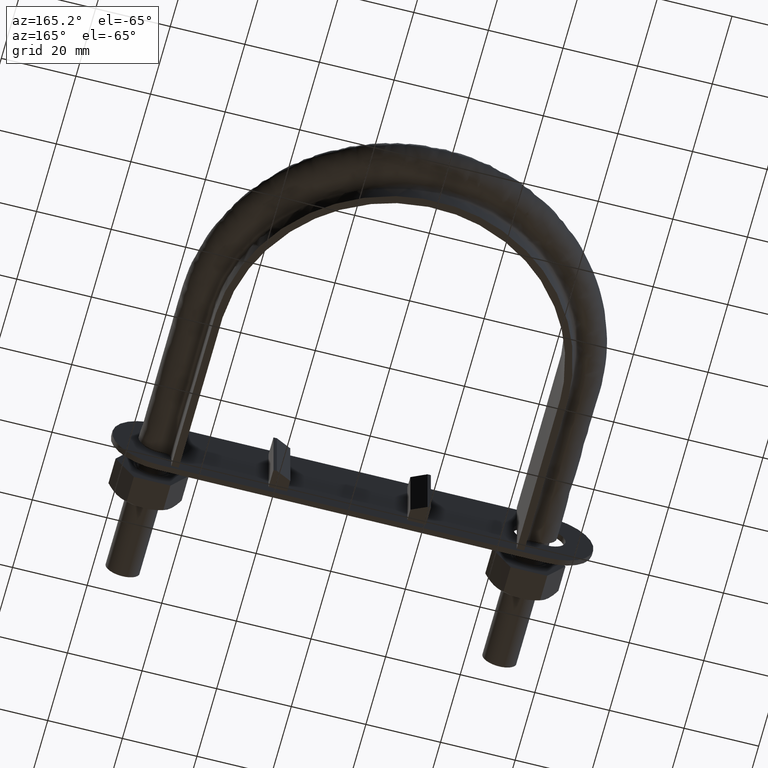
[diagram: clean part render]
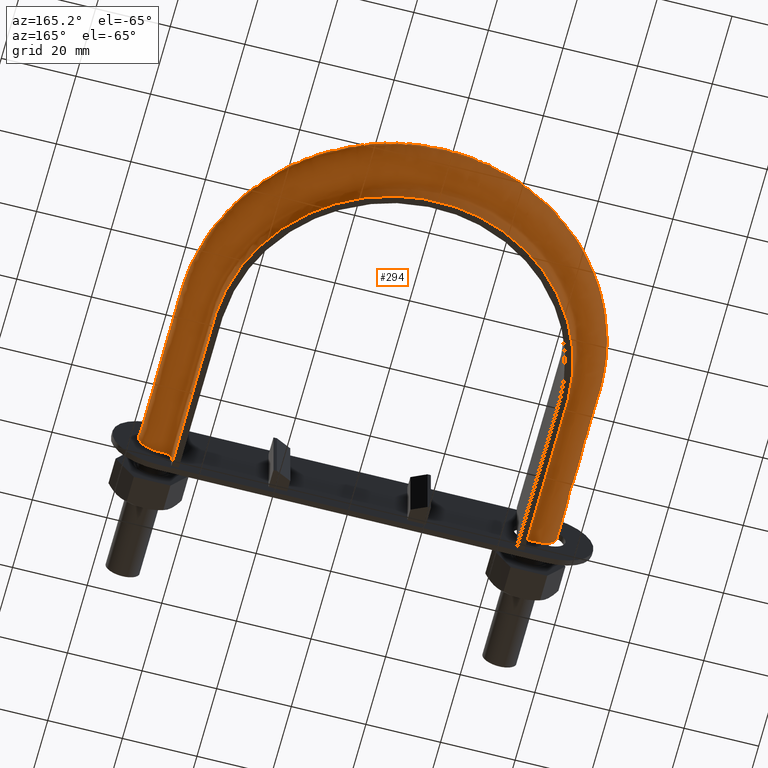
[diagram: same view with one face highlighted and labeled with its STEP entity id]
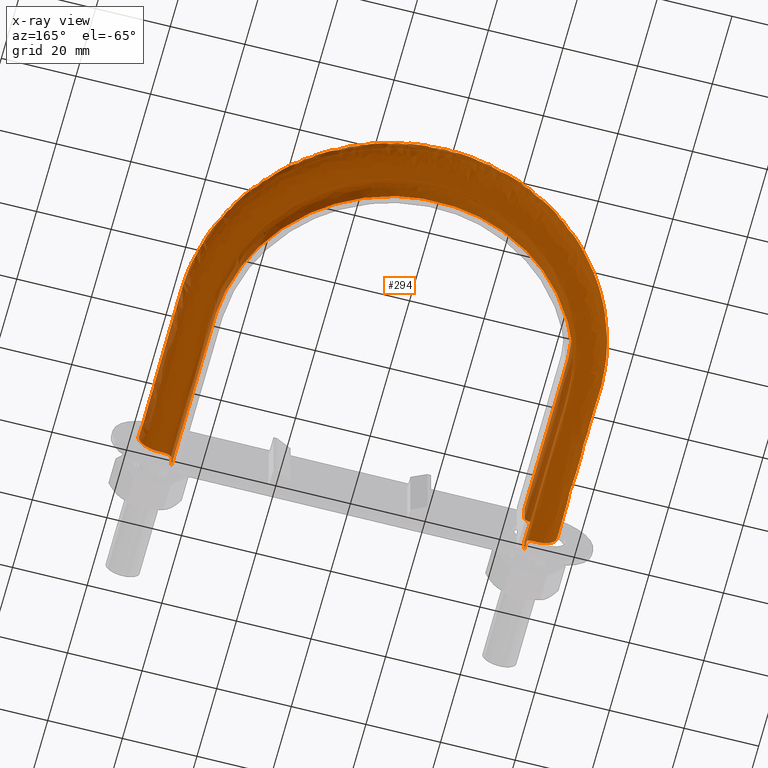
[diagram: x-ray of the same camera — body ghosted, the highlighted face saturated]
A machine part, auxiliary view. The second image highlights one B-rep face of the part: STEP entity #294.
The next image is the same camera in x-ray: the body ghosted, the highlighted face saturated — about 3% of this face is hidden behind the body in this view.
In plain terms, the highlighted face is a freeform B-spline surface patch.
Its self-contained STEP definition (entity closure, byte-faithful):
#294 = ADVANCED_FACE( '', ( #442 ), #443, .F. );
#442 = FACE_OUTER_BOUND( '', #854, .T. );
#443 = B_SPLINE_SURFACE_WITH_KNOTS( '', 3, 3, ( ( #855, #856, #857, #858, #859, #860, #861, #862, #863, #864, #865, #866, #867, #868, #869, #870 ), ( #871, #872, #873, #874, #875, #876, #877, #878, #879, #880, #881, #882, #883, #884, #885, #886 ), ( #887, #888, #889, #890, #891, #892, #893, #894, #895, #896, #897, #898, #899, #900, #901, #902 ), ( #903, #904, #905, #906, #907, #908, #909, #910, #911, #912, #913, #914, #915, #916, #917, #918 ), ( #919, #920, #921, #922, #923, #924, #925, #926, #927, #928, #929, #930, #931, #932, #933, #934 ), ( #935, #936, #937, #938, #939, #940, #941, #942, #943, #944, #945, #946, #947, #948, #949, #950 ), ( #951, #952, #953, #954, #955, #956, #957, #958, #959, #960, #961, #962, #963, #964, #965, #966 ), ( #967, #968, #969, #970, #971, #972, #973, #974, #975, #976, #977, #978, #979, #980, #981, #982 ), ( #983, #984, #985, #986, #987, #988, #989, #990, #991, #992, #993, #994, #995, #996, #997, #998 ), ( #999, #1000, #1001, #1002, #1003, #1004, #1005, #1006, #1007, #1008, #1009, #1010, #1011, #1012, #1013, #1014 ), ( #1015, #1016, #1017, #1018, #1019, #1020, #1021, #1022, #1023, #1024, #1025, #1026, #1027, #1028, #1029, #1030 ), ( #1031, #1032, #1033, #1034, #1035, #1036, #1037, #1038, #1039, #1040, #1041, #1042, #1043, #1044, #1045, #1046 ), ( #1047, #1048, #1049, #1050, #1051, #1052, #1053, #1054, #1055, #1056, #1057, #1058, #1059, #1060, #1061, #1062 ), ( #1063, #1064, #1065, #1066, #1067, #1068, #1069, #1070, #1071, #1072, #1073, #1074, #1075, #1076, #1077, #1078 ), ( #1079, #1080, #1081, #1082, #1083, #1084, #1085, #1086, #1087, #1088, #1089, #1090, #1091, #1092, #1093, #1094 ), ( #1095, #1096, #1097, #1098, #1099, #1100, #1101, #1102, #1103, #1104, #1105, #1106, #1107, #1108, #1109, #1110 ), ( #1111, #1112, #1113, #1114, #1115, #1116, #1117, #1118, #1119, #1120, #1121, #1122, #1123, #1124, #1125, #1126 ), ( #1127, #1128, #1129, #1130, #1131, #1132, #1133, #1134, #1135, #1136, #1137, #1138, #1139, #1140, #1141, #1142 ), ( #1143, #1144, #1145, #1146, #1147, #1148, #1149, #1150, #1151, #1152, #1153, #1154, #1155, #1156, #1157, #1158 ), ( #1159, #1160, #1161, #1162, #1163, #1164, #1165, #1166, #1167, #1168, #1169, #1170, #1171, #1172, #1173, #1174 ), ( #1175, #1176, #1177, #1178, #1179, #1180, #1181, #1182, #1183, #1184, #1185, #1186, #1187, #1188, #1189, #1190 ), ( #1191, #1192, #1193, #1194, #1195, #1196, #1197, #1198, #1199, #1200, #1201, #1202, #1203, #1204, #1205, #1206 ), ( #1207, #1208, #1209, #1210, #1211, #1212, #1213, #1214, #1215, #1216, #1217, #1218, #1219, #1220, #1221, #1222 ), ( #1223, #1224, #1225, #1226, #1227, #1228, #1229, #1230, #1231, #1232, #1233, #1234, #1235, #1236, #1237, #1238 ), ( #1239, #1240, #1241, #1242, #1243, #1244, #1245, #1246, #1247, #1248, #1249, #1250, #1251, #1252, #1253, #1254 ), ( #1255, #1256, #1257, #1258, #1259, #1260, #1261, #1262, #1263, #1264, #1265, #1266, #1267, #1268, #1269, #1270 ), ( #1271, #1272, #1273, #1274, #1275, #1276, #1277, #1278, #1279, #1280, #1281, #1282, #1283, #1284, #1285, #1286 ), ( #1287, #1288, #1289, #1290, #1291, #1292, #1293, #1294, #1295, #1296, #1297, #1298, #1299, #1300, #1301, #1302 ), ( #1303, #1304, #1305, #1306, #1307, #1308, #1309, #1310, #1311, #1312, #1313, #1314, #1315, #1316, #1317, #1318 ), ( #1319, #1320, #1321, #1322, #1323, #1324, #1325, #1326, #1327, #1328, #1329, #1330, #1331, #1332, #1333, #1334 ), ( #1335, #1336, #1337, #1338, #1339, #1340, #1341, #1342, #1343, #1344, #1345, #1346, #1347, #1348, #1349, #1350 ) ), .UNSPECIFIED., .F., .F., .F., ( 4, 3, 1, 1, 1, 3, 3, 1, 1, 1, 3, 3, 1, 1, 1, 3, 4 ), ( 4, 3, 1, 1, 1, 1, 1, 1, 3, 4 ), ( 0.105263157894737, 0.157894736842105, 0.210526315789474, 0.263157894736842, 0.315789473684211, 0.368421052631579, 0.421052631578947, 0.473684210526316, 0.526315789473684, 0.578947368421053, 0.631578947368421, 0.684210526315789, 0.736842105263158, 0.789473684210526, 0.842105263157895, 0.894736842105263, 0.947368421052632 ), ( 0.000000000000000, 1.00000000000000, 2.00000000000000, 3.00000000000000, 4.00000000000000, 5.00000000000000, 6.00000000000000, 7.00000000000000, 8.00000000000000, 9.00000000000000 ), .UNSPECIFIED. );
#854 = EDGE_LOOP( '', ( #1863, #1864, #1865, #1866 ) );
#855 = CARTESIAN_POINT( '', ( -47.3000000000000, 34.1000000000000, 12.5000000000000 ) );
#856 = CARTESIAN_POINT( '', ( -47.3000000000000, 49.6333333333334, 12.5000000000000 ) );
#857 = CARTESIAN_POINT( '', ( -47.3000000000000, 65.1666666666667, 12.5000000000000 ) );
#858 = CARTESIAN_POINT( '', ( -47.3000000000000, 80.7000000000000, 12.5000000000000 ) );
#859 = CARTESIAN_POINT( '', ( -47.3000000000000, 87.7661188393846, 12.5000000000000 ) );
#860 = CARTESIAN_POINT( '', ( -44.0706150865366, 101.927141121989, 12.5000000000000 ) );
#861 = CARTESIAN_POINT( '', ( -30.4978119078285, 118.942032975526, 12.5000000000000 ) );
#862 = CARTESIAN_POINT( '', ( -10.8845430496578, 128.388501700335, 12.5000000000000 ) );
#863 = CARTESIAN_POINT( '', ( 10.8845430496579, 128.388501700335, 12.5000000000000 ) );
#864 = CARTESIAN_POINT( '', ( 30.4978119078286, 118.942032975526, 12.5000000000000 ) );
#865 = CARTESIAN_POINT( '', ( 44.0706150865366, 101.927141121989, 12.5000000000000 ) );
#866 = CARTESIAN_POINT( '', ( 47.3000000000000, 87.7661188393846, 12.5000000000000 ) );
#867 = CARTESIAN_POINT( '', ( 47.3000000000000, 80.7000000000000, 12.5000000000000 ) );
#868 = CARTESIAN_POINT( '', ( 47.3000000000000, 65.1666666666667, 12.5000000000000 ) );
#869 = CARTESIAN_POINT( '', ( 47.3000000000000, 49.6333333333333, 12.5000000000000 ) );
#870 = CARTESIAN_POINT( '', ( 47.3000000000000, 34.1000000000000, 12.5000000000000 ) );
#871 = CARTESIAN_POINT( '', ( -47.3000000000000, 34.1000000000000, 10.8666666666667 ) );
#872 = CARTESIAN_POINT( '', ( -47.3000000000000, 49.6333333333334, 10.8666666666667 ) );
#873 = CARTESIAN_POINT( '', ( -47.3000000000000, 65.1666666666667, 10.8666666666667 ) );
#874 = CARTESIAN_POINT( '', ( -47.3000000000000, 80.7000000000000, 10.8666666666667 ) );
#875 = CARTESIAN_POINT( '', ( -47.3000000000000, 87.7661188393846, 10.8666666666667 ) );
#876 = CARTESIAN_POINT( '', ( -44.0706150865365, 101.927141121989, 10.8666666666667 ) );
#877 = CARTESIAN_POINT( '', ( -30.4978119078285, 118.942032975526, 10.8666666666667 ) );
#878 = CARTESIAN_POINT( '', ( -10.8845430496578, 128.388501700335, 10.8666666666667 ) );
#879 = CARTESIAN_POINT( '', ( 10.8845430496579, 128.388501700335, 10.8666666666667 ) );
#880 = CARTESIAN_POINT( '', ( 30.4978119078286, 118.942032975526, 10.8666666666667 ) );
#881 = CARTESIAN_POINT( '', ( 44.0706150865366, 101.927141121989, 10.8666666666667 ) );
#882 = CARTESIAN_POINT( '', ( 47.3000000000000, 87.7661188393846, 10.8666666666667 ) );
#883 = CARTESIAN_POINT( '', ( 47.3000000000000, 80.7000000000000, 10.8666666666667 ) );
#884 = CARTESIAN_POINT( '', ( 47.3000000000000, 65.1666666666667, 10.8666666666667 ) );
#885 = CARTESIAN_POINT( '', ( 47.3000000000000, 49.6333333333333, 10.8666666666667 ) );
#886 = CARTESIAN_POINT( '', ( 47.3000000000000, 34.1000000000000, 10.8666666666667 ) );
#887 = CARTESIAN_POINT( '', ( -47.3000000000000, 34.1000000000000, 9.23333333333332 ) );
#888 = CARTESIAN_POINT( '', ( -47.3000000000000, 49.6333333333334, 9.23333333333332 ) );
#889 = CARTESIAN_POINT( '', ( -47.3000000000000, 65.1666666666667, 9.23333333333332 ) );
#890 = CARTESIAN_POINT( '', ( -47.3000000000000, 80.7000000000000, 9.23333333333332 ) );
#891 = CARTESIAN_POINT( '', ( -47.3000000000000, 87.7661188393846, 9.23333333333332 ) );
#892 = CARTESIAN_POINT( '', ( -44.0706150865365, 101.927141121989, 9.23333333333333 ) );
#893 = CARTESIAN_POINT( '', ( -30.4978119078285, 118.942032975526, 9.23333333333332 ) );
#894 = CARTESIAN_POINT( '', ( -10.8845430496578, 128.388501700335, 9.23333333333332 ) );
#895 = CARTESIAN_POINT( '', ( 10.8845430496579, 128.388501700335, 9.23333333333332 ) );
#896 = CARTESIAN_POINT( '', ( 30.4978119078286, 118.942032975526, 9.23333333333332 ) );
#897 = CARTESIAN_POINT( '', ( 44.0706150865366, 101.927141121989, 9.23333333333332 ) );
#898 = CARTESIAN_POINT( '', ( 47.3000000000000, 87.7661188393846, 9.23333333333332 ) );
#899 = CARTESIAN_POINT( '', ( 47.3000000000000, 80.7000000000000, 9.23333333333332 ) );
#900 = CARTESIAN_POINT( '', ( 47.3000000000000, 65.1666666666667, 9.23333333333332 ) );
#901 = CARTESIAN_POINT( '', ( 47.3000000000000, 49.6333333333333, 9.23333333333332 ) );
#902 = CARTESIAN_POINT( '', ( 47.3000000000000, 34.1000000000000, 9.23333333333332 ) );
#903 = CARTESIAN_POINT( '', ( -47.3000000000000, 34.1000000000000, 7.59999999999998 ) );
#904 = CARTESIAN_POINT( '', ( -47.3000000000000, 49.6333333333334, 7.59999999999998 ) );
#905 = CARTESIAN_POINT( '', ( -47.3000000000000, 65.1666666666667, 7.59999999999998 ) );
#906 = CARTESIAN_POINT( '', ( -47.3000000000000, 80.7000000000000, 7.59999999999998 ) );
#907 = CARTESIAN_POINT( '', ( -47.3000000000000, 87.7661188393846, 7.59999999999998 ) );
#908 = CARTESIAN_POINT( '', ( -44.0706150865365, 101.927141121989, 7.59999999999998 ) );
#909 = CARTESIAN_POINT( '', ( -30.4978119078285, 118.942032975526, 7.59999999999998 ) );
#910 = CARTESIAN_POINT( '', ( -10.8845430496578, 128.388501700335, 7.59999999999998 ) );
#911 = CARTESIAN_POINT( '', ( 10.8845430496579, 128.388501700335, 7.59999999999998 ) );
#912 = CARTESIAN_POINT( '', ( 30.4978119078286, 118.942032975526, 7.59999999999998 ) );
#913 = CARTESIAN_POINT( '', ( 44.0706150865366, 101.927141121989, 7.59999999999998 ) );
#914 = CARTESIAN_POINT( '', ( 47.3000000000000, 87.7661188393846, 7.59999999999998 ) );
#915 = CARTESIAN_POINT( '', ( 47.3000000000000, 80.7000000000000, 7.59999999999998 ) );
#916 = CARTESIAN_POINT( '', ( 47.3000000000000, 65.1666666666667, 7.59999999999998 ) );
#917 = CARTESIAN_POINT( '', ( 47.3000000000000, 49.6333333333333, 7.59999999999998 ) );
#918 = CARTESIAN_POINT( '', ( 47.3000000000000, 34.1000000000000, 7.59999999999998 ) );
#919 = CARTESIAN_POINT( '', ( -47.3000000000000, 34.1000000000000, 7.33823584172332 ) );
#920 = CARTESIAN_POINT( '', ( -47.3000000000000, 49.6333333333334, 7.33823584172332 ) );
#921 = CARTESIAN_POINT( '', ( -47.3000000000000, 65.1666666666667, 7.33823584172332 ) );
#922 = CARTESIAN_POINT( '', ( -47.3000000000000, 80.7000000000000, 7.33823584172332 ) );
#923 = CARTESIAN_POINT( '', ( -47.3000000000000, 87.7661188393846, 7.33823584172332 ) );
#924 = CARTESIAN_POINT( '', ( -44.0706150865365, 101.927141121989, 7.33823584172332 ) );
#925 = CARTESIAN_POINT( '', ( -30.4978119078285, 118.942032975526, 7.33823584172332 ) );
#926 = CARTESIAN_POINT( '', ( -10.8845430496578, 128.388501700335, 7.33823584172332 ) );
#927 = CARTESIAN_POINT( '', ( 10.8845430496579, 128.388501700335, 7.33823584172332 ) );
#928 = CARTESIAN_POINT( '', ( 30.4978119078286, 118.942032975526, 7.33823584172332 ) );
#929 = CARTESIAN_POINT( '', ( 44.0706150865366, 101.927141121989, 7.33823584172332 ) );
#930 = CARTESIAN_POINT( '', ( 47.3000000000000, 87.7661188393846, 7.33823584172332 ) );
#931 = CARTESIAN_POINT( '', ( 47.3000000000000, 80.7000000000000, 7.33823584172332 ) );
#932 = CARTESIAN_POINT( '', ( 47.3000000000000, 65.1666666666667, 7.33823584172332 ) );
#933 = CARTESIAN_POINT( '', ( 47.3000000000000, 49.6333333333333, 7.33823584172332 ) );
#934 = CARTESIAN_POINT( '', ( 47.3000000000000, 34.1000000000000, 7.33823584172332 ) );
#935 = CARTESIAN_POINT( '', ( -47.4041362568359, 34.1000000000000, 6.81470752516999 ) );
#936 = CARTESIAN_POINT( '', ( -47.4041362568359, 49.6333333333334, 6.81470752516999 ) );
#937 = CARTESIAN_POINT( '', ( -47.4041362568359, 65.1666666666667, 6.81470752516999 ) );
#938 = CARTESIAN_POINT( '', ( -47.4041362568359, 80.7000000000000, 6.81470752516999 ) );
#939 = CARTESIAN_POINT( '', ( -47.4041362568359, 87.7819644534314, 6.81470752516999 ) );
#940 = CARTESIAN_POINT( '', ( -44.1676414901638, 101.973741238848, 6.81470752516999 ) );
#941 = CARTESIAN_POINT( '', ( -30.5649562624536, 119.026262316408, 6.81470752516999 ) );
#942 = CARTESIAN_POINT( '', ( -10.9085065923758, 128.493486244310, 6.81470752516999 ) );
#943 = CARTESIAN_POINT( '', ( 10.9085065923758, 128.493486244310, 6.81470752516999 ) );
#944 = CARTESIAN_POINT( '', ( 30.5649562624537, 119.026262316408, 6.81470752516999 ) );
#945 = CARTESIAN_POINT( '', ( 44.1676414901638, 101.973741238848, 6.81470752516999 ) );
#946 = CARTESIAN_POINT( '', ( 47.4041362568359, 87.7819644534314, 6.81470752516999 ) );
#947 = CARTESIAN_POINT( '', ( 47.4041362568359, 80.7000000000000, 6.81470752516999 ) );
#948 = CARTESIAN_POINT( '', ( 47.4041362568359, 65.1666666666667, 6.81470752516999 ) );
#949 = CARTESIAN_POINT( '', ( 47.4041362568359, 49.6333333333333, 6.81470752516999 ) );
#950 = CARTESIAN_POINT( '', ( 47.4041362568359, 34.1000000000000, 6.81470752516999 ) );
#951 = CARTESIAN_POINT( '', ( -47.8489687109389, 34.1000000000000, 6.14896871093886 ) );
#952 = CARTESIAN_POINT( '', ( -47.8489687109389, 49.6333333333334, 6.14896871093886 ) );
#953 = CARTESIAN_POINT( '', ( -47.8489687109389, 65.1666666666667, 6.14896871093886 ) );
#954 = CARTESIAN_POINT( '', ( -47.8489687109389, 80.7000000000000, 6.14896871093886 ) );
#955 = CARTESIAN_POINT( '', ( -47.8489687109389, 87.8496511899954, 6.14896871093886 ) );
#956 = CARTESIAN_POINT( '', ( -44.5821032208778, 102.172800096677, 6.14896871093886 ) );
#957 = CARTESIAN_POINT( '', ( -30.8517726792767, 119.386059619966, 6.14896871093886 ) );
#958 = CARTESIAN_POINT( '', ( -11.0108701863836, 128.941942274498, 6.14896871093886 ) );
#959 = CARTESIAN_POINT( '', ( 11.0108701863836, 128.941942274498, 6.14896871093886 ) );
#960 = CARTESIAN_POINT( '', ( 30.8517726792767, 119.386059619966, 6.14896871093886 ) );
#961 = CARTESIAN_POINT( '', ( 44.5821032208778, 102.172800096677, 6.14896871093886 ) );
#962 = CARTESIAN_POINT( '', ( 47.8489687109389, 87.8496511899954, 6.14896871093886 ) );
#963 = CARTESIAN_POINT( '', ( 47.8489687109389, 80.7000000000000, 6.14896871093886 ) );
#964 = CARTESIAN_POINT( '', ( 47.8489687109389, 65.1666666666667, 6.14896871093886 ) );
#965 = CARTESIAN_POINT( '', ( 47.8489687109389, 49.6333333333333, 6.14896871093886 ) );
#966 = CARTESIAN_POINT( '', ( 47.8489687109389, 34.1000000000000, 6.14896871093886 ) );
#967 = CARTESIAN_POINT( '', ( -48.5147075251700, 34.1000000000000, 5.70413625683589 ) );
#968 = CARTESIAN_POINT( '', ( -48.5147075251700, 49.6333333333334, 5.70413625683589 ) );
#969 = CARTESIAN_POINT( '', ( -48.5147075251700, 65.1666666666667, 5.70413625683589 ) );
#970 = CARTESIAN_POINT( '', ( -48.5147075251700, 80.7000000000000, 5.70413625683589 ) );
#971 = CARTESIAN_POINT( '', ( -48.5147075251700, 87.9509515499931, 5.70413625683589 ) );
#972 = CARTESIAN_POINT( '', ( -45.2023890354686, 102.470712730412, 5.70413625683589 ) );
#973 = CARTESIAN_POINT( '', ( -31.2810237815211, 119.924534337862, 5.70413625683589 ) );
#974 = CARTESIAN_POINT( '', ( -11.1640681310628, 129.613104153578, 5.70413625683589 ) );
#975 = CARTESIAN_POINT( '', ( 11.1640681310629, 129.613104153579, 5.70413625683589 ) );
#976 = CARTESIAN_POINT( '', ( 31.2810237815212, 119.924534337862, 5.70413625683589 ) );
#977 = CARTESIAN_POINT( '', ( 45.2023890354687, 102.470712730412, 5.70413625683589 ) );
#978 = CARTESIAN_POINT( '', ( 48.5147075251700, 87.9509515499931, 5.70413625683589 ) );
#979 = CARTESIAN_POINT( '', ( 48.5147075251700, 80.7000000000000, 5.70413625683589 ) );
#980 = CARTESIAN_POINT( '', ( 48.5147075251700, 65.1666666666667, 5.70413625683589 ) );
#981 = CARTESIAN_POINT( '', ( 48.5147075251700, 49.6333333333333, 5.70413625683589 ) );
#982 = CARTESIAN_POINT( '', ( 48.5147075251700, 34.1000000000000, 5.70413625683589 ) );
#983 = CARTESIAN_POINT( '', ( -49.0382358417233, 34.1000000000000, 5.59999999999998 ) );
#984 = CARTESIAN_POINT( '', ( -49.0382358417233, 49.6333333333334, 5.59999999999998 ) );
#985 = CARTESIAN_POINT( '', ( -49.0382358417233, 65.1666666666667, 5.59999999999998 ) );
#986 = CARTESIAN_POINT( '', ( -49.0382358417233, 80.7000000000000, 5.59999999999998 ) );
#987 = CARTESIAN_POINT( '', ( -49.0382358417233, 88.0306128312676, 5.59999999999998 ) );
#988 = CARTESIAN_POINT( '', ( -45.6901737062027, 102.704987338239, 5.59999999999998 ) );
#989 = CARTESIAN_POINT( '', ( -31.6185812472012, 120.347983829676, 5.59999999999998 ) );
#990 = CARTESIAN_POINT( '', ( -11.2845409957402, 130.140897097566, 5.59999999999998 ) );
#991 = CARTESIAN_POINT( '', ( 11.2845409957402, 130.140897097566, 5.59999999999998 ) );
#992 = CARTESIAN_POINT( '', ( 31.6185812472012, 120.347983829676, 5.59999999999998 ) );
#993 = CARTESIAN_POINT( '', ( 45.6901737062028, 102.704987338239, 5.59999999999998 ) );
#994 = CARTESIAN_POINT( '', ( 49.0382358417234, 88.0306128312676, 5.59999999999998 ) );
#995 = CARTESIAN_POINT( '', ( 49.0382358417234, 80.7000000000000, 5.59999999999998 ) );
#996 = CARTESIAN_POINT( '', ( 49.0382358417234, 65.1666666666667, 5.59999999999998 ) );
#997 = CARTESIAN_POINT( '', ( 49.0382358417233, 49.6333333333333, 5.59999999999998 ) );
#998 = CARTESIAN_POINT( '', ( 49.0382358417233, 34.1000000000000, 5.59999999999998 ) );
#999 = CARTESIAN_POINT( '', ( -49.3000000000000, 34.1000000000000, 5.59999999999998 ) );
#1000 = CARTESIAN_POINT( '', ( -49.3000000000000, 49.6333333333334, 5.59999999999998 ) );
#1001 = CARTESIAN_POINT( '', ( -49.3000000000000, 65.1666666666667, 5.59999999999998 ) );
#1002 = CARTESIAN_POINT( '', ( -49.3000000000000, 80.7000000000000, 5.59999999999998 ) );
#1003 = CARTESIAN_POINT( '', ( -49.3000000000000, 88.0704434719049, 5.59999999999998 ) );
#1004 = CARTESIAN_POINT( '', ( -45.9340660415698, 102.822124642153, 5.59999999999998 ) );
#1005 = CARTESIAN_POINT( '', ( -31.7873599800412, 120.559708575583, 5.59999999999998 ) );
#1006 = CARTESIAN_POINT( '', ( -11.3447774280788, 130.404793569560, 5.59999999999998 ) );
#1007 = CARTESIAN_POINT( '', ( 11.3447774280789, 130.404793569560, 5.59999999999998 ) );
#1008 = CARTESIAN_POINT( '', ( 31.7873599800412, 120.559708575583, 5.59999999999998 ) );
#1009 = CARTESIAN_POINT( '', ( 45.9340660415698, 102.822124642153, 5.59999999999998 ) );
#1010 = CARTESIAN_POINT( '', ( 49.3000000000000, 88.0704434719048, 5.59999999999998 ) );
#1011 = CARTESIAN_POINT( '', ( 49.3000000000000, 80.7000000000000, 5.59999999999998 ) );
#1012 = CARTESIAN_POINT( '', ( 49.3000000000000, 65.1666666666667, 5.59999999999998 ) );
#1013 = CARTESIAN_POINT( '', ( 49.3000000000000, 49.6333333333333, 5.59999999999998 ) );
#1014 = CARTESIAN_POINT( '', ( 49.3000000000000, 34.1000000000000, 5.59999999999998 ) );
#1015 = CARTESIAN_POINT( '', ( -49.7000000000000, 34.1000000000000, 5.60000000000000 ) );
#1016 = CARTESIAN_POINT( '', ( -49.7000000000000, 49.6333333333334, 5.60000000000000 ) );
#1017 = CARTESIAN_POINT( '', ( -49.7000000000000, 65.1666666666667, 5.60000000000000 ) );
#1018 = CARTESIAN_POINT( '', ( -49.7000000000000, 80.7000000000000, 5.60000000000000 ) );
#1019 = CARTESIAN_POINT( '', ( -49.7000000000000, 88.1313083984089, 5.60000000000000 ) );
#1020 = CARTESIAN_POINT( '', ( -46.3067562325765, 103.001121346185, 5.60000000000000 ) );
#1021 = CARTESIAN_POINT( '', ( -32.0452695944837, 120.883243695594, 5.60000000000000 ) );
#1022 = CARTESIAN_POINT( '', ( -11.4368243037631, 130.808051943405, 5.60000000000000 ) );
#1023 = CARTESIAN_POINT( '', ( 11.4368243037631, 130.808051943405, 5.60000000000000 ) );
#1024 = CARTESIAN_POINT( '', ( 32.0452695944838, 120.883243695594, 5.60000000000000 ) );
#1025 = CARTESIAN_POINT( '', ( 46.3067562325765, 103.001121346185, 5.60000000000000 ) );
#1026 = CARTESIAN_POINT( '', ( 49.7000000000001, 88.1313083984089, 5.60000000000000 ) );
#1027 = CARTESIAN_POINT( '', ( 49.7000000000000, 80.7000000000000, 5.60000000000000 ) );
#1028 = CARTESIAN_POINT( '', ( 49.7000000000000, 65.1666666666667, 5.60000000000000 ) );
#1029 = CARTESIAN_POINT( '', ( 49.7000000000000, 49.6333333333333, 5.60000000000000 ) );
#1030 = CARTESIAN_POINT( '', ( 49.7000000000000, 34.1000000000000, 5.60000000000000 ) );
#1031 = CARTESIAN_POINT( '', ( -50.1000000000000, 34.1000000000000, 5.60000000000000 ) );
#1032 = CARTESIAN_POINT( '', ( -50.1000000000000, 49.6333333333334, 5.60000000000000 ) );
#1033 = CARTESIAN_POINT( '', ( -50.1000000000000, 65.1666666666667, 5.60000000000000 ) );
#1034 = CARTESIAN_POINT( '', ( -50.1000000000000, 80.7000000000000, 5.60000000000000 ) );
#1035 = CARTESIAN_POINT( '', ( -50.1000000000000, 88.1921733249129, 5.60000000000000 ) );
#1036 = CARTESIAN_POINT( '', ( -46.6794464235831, 103.180118050218, 5.60000000000000 ) );
#1037 = CARTESIAN_POINT( '', ( -32.3031792089262, 121.206778815605, 5.60000000000000 ) );
#1038 = CARTESIAN_POINT( '', ( -11.5288711794473, 131.211310317250, 5.60000000000000 ) );
#1039 = CARTESIAN_POINT( '', ( 11.5288711794473, 131.211310317250, 5.60000000000000 ) );
#1040 = CARTESIAN_POINT( '', ( 32.3031792089263, 121.206778815605, 5.60000000000000 ) );
#1041 = CARTESIAN_POINT( '', ( 46.6794464235832, 103.180118050218, 5.60000000000000 ) );
#1042 = CARTESIAN_POINT( '', ( 50.1000000000000, 88.1921733249129, 5.60000000000000 ) );
#1043 = CARTESIAN_POINT( '', ( 50.1000000000000, 80.7000000000000, 5.60000000000000 ) );
#1044 = CARTESIAN_POINT( '', ( 50.1000000000000, 65.1666666666667, 5.60000000000000 ) );
#1045 = CARTESIAN_POINT( '', ( 50.1000000000000, 49.6333333333333, 5.60000000000000 ) );
#1046 = CARTESIAN_POINT( '', ( 50.1000000000000, 34.1000000000000, 5.60000000000000 ) );
#1047 = CARTESIAN_POINT( '', ( -50.5000000000000, 34.1000000000000, 5.60000000000000 ) );
#1048 = CARTESIAN_POINT( '', ( -50.5000000000000, 49.6333333333334, 5.60000000000000 ) );
#1049 = CARTESIAN_POINT( '', ( -50.5000000000000, 65.1666666666667, 5.60000000000000 ) );
#1050 = CARTESIAN_POINT( '', ( -50.5000000000000, 80.7000000000000, 5.60000000000000 ) );
#1051 = CARTESIAN_POINT( '', ( -50.5000000000000, 88.2530382514170, 5.60000000000000 ) );
#1052 = CARTESIAN_POINT( '', ( -47.0521366145898, 103.359114754251, 5.60000000000000 ) );
#1053 = CARTESIAN_POINT( '', ( -32.5610888233687, 121.530313935617, 5.60000000000000 ) );
#1054 = CARTESIAN_POINT( '', ( -11.6209180551315, 131.614568691095, 5.60000000000000 ) );
#1055 = CARTESIAN_POINT( '', ( 11.6209180551315, 131.614568691095, 5.60000000000000 ) );
#1056 = CARTESIAN_POINT( '', ( 32.5610888233688, 121.530313935617, 5.60000000000000 ) );
#1057 = CARTESIAN_POINT( '', ( 47.0521366145898, 103.359114754251, 5.60000000000000 ) );
#1058 = CARTESIAN_POINT( '', ( 50.5000000000000, 88.2530382514170, 5.60000000000000 ) );
#1059 = CARTESIAN_POINT( '', ( 50.5000000000000, 80.7000000000000, 5.60000000000000 ) );
#1060 = CARTESIAN_POINT( '', ( 50.5000000000000, 65.1666666666667, 5.60000000000000 ) );
#1061 = CARTESIAN_POINT( '', ( 50.5000000000000, 49.6333333333333, 5.60000000000000 ) );
#1062 = CARTESIAN_POINT( '', ( 50.5000000000000, 34.1000000000000, 5.60000000000000 ) );
#1063 = CARTESIAN_POINT( '', ( -51.9627416997969, 34.1000000000000, 5.60000000000000 ) );
#1064 = CARTESIAN_POINT( '', ( -51.9627416997969, 49.6333333333334, 5.60000000000000 ) );
#1065 = CARTESIAN_POINT( '', ( -51.9627416997969, 65.1666666666667, 5.60000000000000 ) );
#1066 = CARTESIAN_POINT( '', ( -51.9627416997969, 80.7000000000000, 5.60000000000000 ) );
#1067 = CARTESIAN_POINT( '', ( -51.9627416997969, 88.4756124165483, 5.60000000000000 ) );
#1068 = CARTESIAN_POINT( '', ( -48.4150103233166, 104.013679612038, 5.60000000000001 ) );
#1069 = CARTESIAN_POINT( '', ( -33.5042266929278, 122.713434714090, 5.60000000000000 ) );
#1070 = CARTESIAN_POINT( '', ( -11.9575200636298, 133.089225789134, 5.60000000000000 ) );
#1071 = CARTESIAN_POINT( '', ( 11.9575200636298, 133.089225789134, 5.60000000000000 ) );
#1072 = CARTESIAN_POINT( '', ( 33.5042266929279, 122.713434714090, 5.60000000000000 ) );
#1073 = CARTESIAN_POINT( '', ( 48.4150103233166, 104.013679612038, 5.60000000000000 ) );
#1074 = CARTESIAN_POINT( '', ( 51.9627416997970, 88.4756124165483, 5.60000000000000 ) );
#1075 = CARTESIAN_POINT( '', ( 51.9627416997970, 80.7000000000000, 5.60000000000000 ) );
#1076 = CARTESIAN_POINT( '', ( 51.9627416997970, 65.1666666666667, 5.60000000000000 ) );
#1077 = CARTESIAN_POINT( '', ( 51.9627416997970, 49.6333333333333, 5.60000000000000 ) );
#1078 = CARTESIAN_POINT( '', ( 51.9627416997970, 34.1000000000000, 5.60000000000000 ) );
#1079 = CARTESIAN_POINT( '', ( -54.8882250993909, 34.1000000000000, 4.38822509939086 ) );
#1080 = CARTESIAN_POINT( '', ( -54.8882250993909, 49.6333333333334, 4.38822509939086 ) );
#1081 = CARTESIAN_POINT( '', ( -54.8882250993909, 65.1666666666667, 4.38822509939086 ) );
#1082 = CARTESIAN_POINT( '', ( -54.8882250993909, 80.7000000000000, 4.38822509939086 ) );
#1083 = CARTESIAN_POINT( '', ( -54.8882250993909, 88.9207607468110, 4.38822509939086 ) );
#1084 = CARTESIAN_POINT( '', ( -51.1407577407702, 105.322809327613, 4.38822509939086 ) );
#1085 = CARTESIAN_POINT( '', ( -35.3905024320460, 125.079676271038, 4.38822509939086 ) );
#1086 = CARTESIAN_POINT( '', ( -12.6307240806264, 136.038539985211, 4.38822509939086 ) );
#1087 = CARTESIAN_POINT( '', ( 12.6307240806264, 136.038539985211, 4.38822509939086 ) );
#1088 = CARTESIAN_POINT( '', ( 35.3905024320460, 125.079676271038, 4.38822509939086 ) );
#1089 = CARTESIAN_POINT( '', ( 51.1407577407702, 105.322809327613, 4.38822509939086 ) );
#1090 = CARTESIAN_POINT( '', ( 54.8882250993909, 88.9207607468110, 4.38822509939086 ) );
#1091 = CARTESIAN_POINT( '', ( 54.8882250993909, 80.7000000000000, 4.38822509939086 ) );
#1092 = CARTESIAN_POINT( '', ( 54.8882250993909, 65.1666666666667, 4.38822509939086 ) );
#1093 = CARTESIAN_POINT( '', ( 54.8882250993909, 49.6333333333333, 4.38822509939086 ) );
#1094 = CARTESIAN_POINT( '', ( 54.8882250993909, 34.1000000000000, 4.38822509939086 ) );
#1095 = CARTESIAN_POINT( '', ( -56.7058874503046, 34.1000000000000, 2.90303803946411E-015 ) );
#1096 = CARTESIAN_POINT( '', ( -56.7058874503046, 49.6333333333334, 2.90303803946411E-015 ) );
#1097 = CARTESIAN_POINT( '', ( -56.7058874503046, 65.1666666666667, 2.90303803946411E-015 ) );
#1098 = CARTESIAN_POINT( '', ( -56.7058874503046, 80.7000000000000, 2.90303803946411E-015 ) );
#1099 = CARTESIAN_POINT( '', ( -56.7058874503046, 89.1973404603048, 2.90303803946411E-015 ) );
#1100 = CARTESIAN_POINT( '', ( -52.8343200626392, 106.136198252258, 2.90303803946412E-015 ) );
#1101 = CARTESIAN_POINT( '', ( -36.5624839223231, 126.549870288145, 2.90303803946411E-015 ) );
#1102 = CARTESIAN_POINT( '', ( -13.0489994317524, 137.871008894782, 2.90303803946411E-015 ) );
#1103 = CARTESIAN_POINT( '', ( 13.0489994317525, 137.871008894782, 2.90303803946411E-015 ) );
#1104 = CARTESIAN_POINT( '', ( 36.5624839223232, 126.549870288145, 2.90303803946411E-015 ) );
#1105 = CARTESIAN_POINT( '', ( 52.8343200626393, 106.136198252258, 2.90303803946411E-015 ) );
#1106 = CARTESIAN_POINT( '', ( 56.7058874503046, 89.1973404603048, 2.90303803946411E-015 ) );
#1107 = CARTESIAN_POINT( '', ( 56.7058874503046, 80.7000000000000, 2.90303803946411E-015 ) );
#1108 = CARTESIAN_POINT( '', ( 56.7058874503046, 65.1666666666667, 2.90303803946411E-015 ) );
#1109 = CARTESIAN_POINT( '', ( 56.7058874503046, 49.6333333333333, 2.90303803946411E-015 ) );
#1110 = CARTESIAN_POINT( '', ( 56.7058874503046, 34.1000000000000, 2.90303803946411E-015 ) );
#1111 = CARTESIAN_POINT( '', ( -54.8882250993909, 34.1000000000000, -4.38822509939085 ) );
#1112 = CARTESIAN_POINT( '', ( -54.8882250993909, 49.6333333333334, -4.38822509939085 ) );
#1113 = CARTESIAN_POINT( '', ( -54.8882250993909, 65.1666666666667, -4.38822509939085 ) );
#1114 = CARTESIAN_POINT( '', ( -54.8882250993909, 80.7000000000000, -4.38822509939085 ) );
#1115 = CARTESIAN_POINT( '', ( -54.8882250993909, 88.9207607468110, -4.38822509939085 ) );
#1116 = CARTESIAN_POINT( '', ( -51.1407577407702, 105.322809327613, -4.38822509939086 ) );
#1117 = CARTESIAN_POINT( '', ( -35.3905024320460, 125.079676271038, -4.38822509939085 ) );
#1118 = CARTESIAN_POINT( '', ( -12.6307240806264, 136.038539985211, -4.38822509939086 ) );
#1119 = CARTESIAN_POINT( '', ( 12.6307240806264, 136.038539985211, -4.38822509939085 ) );
#1120 = CARTESIAN_POINT( '', ( 35.3905024320461, 125.079676271038, -4.38822509939086 ) );
#1121 = CARTESIAN_POINT( '', ( 51.1407577407702, 105.322809327613, -4.38822509939086 ) );
#1122 = CARTESIAN_POINT( '', ( 54.8882250993909, 88.9207607468110, -4.38822509939085 ) );
#1123 = CARTESIAN_POINT( '', ( 54.8882250993909, 80.7000000000000, -4.38822509939085 ) );
#1124 = CARTESIAN_POINT( '', ( 54.8882250993909, 65.1666666666667, -4.38822509939085 ) );
#1125 = CARTESIAN_POINT( '', ( 54.8882250993909, 49.6333333333333, -4.38822509939085 ) );
#1126 = CARTESIAN_POINT( '', ( 54.8882250993909, 34.1000000000000, -4.38822509939085 ) );
#1127 = CARTESIAN_POINT( '', ( -51.9627416997969, 34.1000000000000, -5.60000000000000 ) );
#1128 = CARTESIAN_POINT( '', ( -51.9627416997969, 49.6333333333334, -5.60000000000000 ) );
#1129 = CARTESIAN_POINT( '', ( -51.9627416997969, 65.1666666666667, -5.60000000000000 ) );
#1130 = CARTESIAN_POINT( '', ( -51.9627416997969, 80.7000000000000, -5.60000000000000 ) );
#1131 = CARTESIAN_POINT( '', ( -51.9627416997969, 88.4756124165483, -5.60000000000000 ) );
#1132 = CARTESIAN_POINT( '', ( -48.4150103233166, 104.013679612038, -5.60000000000000 ) );
#1133 = CARTESIAN_POINT( '', ( -33.5042266929278, 122.713434714090, -5.60000000000000 ) );
#1134 = CARTESIAN_POINT( '', ( -11.9575200636298, 133.089225789134, -5.60000000000000 ) );
#1135 = CARTESIAN_POINT( '', ( 11.9575200636298, 133.089225789134, -5.60000000000000 ) );
#1136 = CARTESIAN_POINT( '', ( 33.5042266929279, 122.713434714090, -5.60000000000000 ) );
#1137 = CARTESIAN_POINT( '', ( 48.4150103233166, 104.013679612038, -5.60000000000000 ) );
#1138 = CARTESIAN_POINT( '', ( 51.9627416997970, 88.4756124165483, -5.60000000000000 ) );
#1139 = CARTESIAN_POINT( '', ( 51.9627416997970, 80.7000000000000, -5.60000000000000 ) );
#1140 = CARTESIAN_POINT( '', ( 51.9627416997970, 65.1666666666667, -5.60000000000000 ) );
#1141 = CARTESIAN_POINT( '', ( 51.9627416997970, 49.6333333333333, -5.60000000000000 ) );
#1142 = CARTESIAN_POINT( '', ( 51.9627416997970, 34.1000000000000, -5.60000000000000 ) );
#1143 = CARTESIAN_POINT( '', ( -50.5000000000000, 34.1000000000000, -5.60000000000000 ) );
#1144 = CARTESIAN_POINT( '', ( -50.5000000000000, 49.6333333333334, -5.60000000000000 ) );
#1145 = CARTESIAN_POINT( '', ( -50.5000000000000, 65.1666666666667, -5.60000000000000 ) );
#1146 = CARTESIAN_POINT( '', ( -50.5000000000000, 80.7000000000000, -5.60000000000000 ) );
#1147 = CARTESIAN_POINT( '', ( -50.5000000000000, 88.2530382514170, -5.60000000000000 ) );
#1148 = CARTESIAN_POINT( '', ( -47.0521366145898, 103.359114754251, -5.60000000000000 ) );
#1149 = CARTESIAN_POINT( '', ( -32.5610888233687, 121.530313935617, -5.60000000000000 ) );
#1150 = CARTESIAN_POINT( '', ( -11.6209180551315, 131.614568691095, -5.60000000000000 ) );
#1151 = CARTESIAN_POINT( '', ( 11.6209180551315, 131.614568691095, -5.60000000000000 ) );
#1152 = CARTESIAN_POINT( '', ( 32.5610888233688, 121.530313935617, -5.60000000000000 ) );
#1153 = CARTESIAN_POINT( '', ( 47.0521366145898, 103.359114754251, -5.60000000000000 ) );
#1154 = CARTESIAN_POINT( '', ( 50.5000000000000, 88.2530382514170, -5.60000000000000 ) );
#1155 = CARTESIAN_POINT( '', ( 50.5000000000000, 80.7000000000000, -5.60000000000000 ) );
#1156 = CARTESIAN_POINT( '', ( 50.5000000000000, 65.1666666666667, -5.60000000000000 ) );
#1157 = CARTESIAN_POINT( '', ( 50.5000000000000, 49.6333333333333, -5.60000000000000 ) );
#1158 = CARTESIAN_POINT( '', ( 50.5000000000000, 34.1000000000000, -5.60000000000000 ) );
#1159 = CARTESIAN_POINT( '', ( -50.1000000000000, 34.1000000000000, -5.60000000000000 ) );
#1160 = CARTESIAN_POINT( '', ( -50.1000000000000, 49.6333333333334, -5.60000000000000 ) );
#1161 = CARTESIAN_POINT( '', ( -50.1000000000000, 65.1666666666667, -5.60000000000000 ) );
#1162 = CARTESIAN_POINT( '', ( -50.1000000000000, 80.7000000000000, -5.60000000000000 ) );
#1163 = CARTESIAN_POINT( '', ( -50.1000000000000, 88.1921733249129, -5.59999999999999 ) );
#1164 = CARTESIAN_POINT( '', ( -46.6794464235831, 103.180118050218, -5.60000000000000 ) );
#1165 = CARTESIAN_POINT( '', ( -32.3031792089262, 121.206778815605, -5.60000000000000 ) );
#1166 = CARTESIAN_POINT( '', ( -11.5288711794473, 131.211310317250, -5.60000000000000 ) );
#1167 = CARTESIAN_POINT( '', ( 11.5288711794473, 131.211310317250, -5.60000000000000 ) );
#1168 = CARTESIAN_POINT( '', ( 32.3031792089263, 121.206778815605, -5.60000000000000 ) );
#1169 = CARTESIAN_POINT( '', ( 46.6794464235832, 103.180118050218, -5.60000000000000 ) );
#1170 = CARTESIAN_POINT( '', ( 50.1000000000001, 88.1921733249129, -5.59999999999999 ) );
#1171 = CARTESIAN_POINT( '', ( 50.1000000000000, 80.7000000000000, -5.59999999999999 ) );
#1172 = CARTESIAN_POINT( '', ( 50.1000000000000, 65.1666666666667, -5.60000000000000 ) );
#1173 = CARTESIAN_POINT( '', ( 50.1000000000000, 49.6333333333333, -5.60000000000000 ) );
#1174 = CARTESIAN_POINT( '', ( 50.1000000000000, 34.1000000000000, -5.60000000000000 ) );
#1175 = CARTESIAN_POINT( '', ( -49.7000000000000, 34.1000000000000, -5.60000000000000 ) );
#1176 = CARTESIAN_POINT( '', ( -49.7000000000000, 49.6333333333334, -5.60000000000000 ) );
#1177 = CARTESIAN_POINT( '', ( -49.7000000000000, 65.1666666666667, -5.60000000000000 ) );
#1178 = CARTESIAN_POINT( '', ( -49.7000000000000, 80.7000000000000, -5.60000000000000 ) );
#1179 = CARTESIAN_POINT( '', ( -49.7000000000000, 88.1313083984089, -5.59999999999999 ) );
#1180 = CARTESIAN_POINT( '', ( -46.3067562325765, 103.001121346185, -5.60000000000000 ) );
#1181 = CARTESIAN_POINT( '', ( -32.0452695944837, 120.883243695594, -5.60000000000000 ) );
#1182 = CARTESIAN_POINT( '', ( -11.4368243037631, 130.808051943405, -5.60000000000000 ) );
#1183 = CARTESIAN_POINT( '', ( 11.4368243037631, 130.808051943405, -5.60000000000000 ) );
#1184 = CARTESIAN_POINT( '', ( 32.0452695944838, 120.883243695594, -5.60000000000000 ) );
#1185 = CARTESIAN_POINT( '', ( 46.3067562325765, 103.001121346185, -5.60000000000000 ) );
#1186 = CARTESIAN_POINT( '', ( 49.7000000000001, 88.1313083984089, -5.59999999999999 ) );
#1187 = CARTESIAN_POINT( '', ( 49.7000000000001, 80.7000000000000, -5.59999999999999 ) );
#1188 = CARTESIAN_POINT( '', ( 49.7000000000000, 65.1666666666667, -5.60000000000000 ) );
#1189 = CARTESIAN_POINT( '', ( 49.7000000000000, 49.6333333333333, -5.60000000000000 ) );
#1190 = CARTESIAN_POINT( '', ( 49.7000000000000, 34.1000000000000, -5.60000000000000 ) );
#1191 = CARTESIAN_POINT( '', ( -49.3000000000000, 34.1000000000000, -5.60000000000000 ) );
#1192 = CARTESIAN_POINT( '', ( -49.3000000000000, 49.6333333333334, -5.60000000000000 ) );
#1193 = CARTESIAN_POINT( '', ( -49.3000000000000, 65.1666666666667, -5.60000000000000 ) );
#1194 = CARTESIAN_POINT( '', ( -49.3000000000000, 80.7000000000000, -5.60000000000000 ) );
#1195 = CARTESIAN_POINT( '', ( -49.3000000000000, 88.0704434719049, -5.59999999999999 ) );
#1196 = CARTESIAN_POINT( '', ( -45.9340660415698, 102.822124642153, -5.60000000000000 ) );
#1197 = CARTESIAN_POINT( '', ( -31.7873599800412, 120.559708575583, -5.60000000000000 ) );
#1198 = CARTESIAN_POINT( '', ( -11.3447774280789, 130.404793569560, -5.60000000000000 ) );
#1199 = CARTESIAN_POINT( '', ( 11.3447774280789, 130.404793569560, -5.60000000000000 ) );
#1200 = CARTESIAN_POINT( '', ( 31.7873599800412, 120.559708575583, -5.60000000000000 ) );
#1201 = CARTESIAN_POINT( '', ( 45.9340660415699, 102.822124642153, -5.60000000000000 ) );
#1202 = CARTESIAN_POINT( '', ( 49.3000000000001, 88.0704434719048, -5.59999999999999 ) );
#1203 = CARTESIAN_POINT( '', ( 49.3000000000001, 80.7000000000000, -5.59999999999999 ) );
#1204 = CARTESIAN_POINT( '', ( 49.3000000000001, 65.1666666666667, -5.60000000000000 ) );
#1205 = CARTESIAN_POINT( '', ( 49.3000000000000, 49.6333333333333, -5.60000000000000 ) );
#1206 = CARTESIAN_POINT( '', ( 49.3000000000000, 34.1000000000000, -5.60000000000000 ) );
#1207 = CARTESIAN_POINT( '', ( -49.0382358417233, 34.1000000000000, -5.60000000000000 ) );
#1208 = CARTESIAN_POINT( '', ( -49.0382358417233, 49.6333333333334, -5.60000000000000 ) );
#1209 = CARTESIAN_POINT( '', ( -49.0382358417233, 65.1666666666667, -5.60000000000000 ) );
#1210 = CARTESIAN_POINT( '', ( -49.0382358417233, 80.7000000000000, -5.60000000000000 ) );
#1211 = CARTESIAN_POINT( '', ( -49.0382358417233, 88.0306128312676, -5.60000000000000 ) );
#1212 = CARTESIAN_POINT( '', ( -45.6901737062028, 102.704987338239, -5.60000000000000 ) );
#1213 = CARTESIAN_POINT( '', ( -31.6185812472012, 120.347983829676, -5.60000000000000 ) );
#1214 = CARTESIAN_POINT( '', ( -11.2845409957402, 130.140897097566, -5.60000000000000 ) );
#1215 = CARTESIAN_POINT( '', ( 11.2845409957402, 130.140897097566, -5.60000000000000 ) );
#1216 = CARTESIAN_POINT( '', ( 31.6185812472012, 120.347983829676, -5.60000000000000 ) );
#1217 = CARTESIAN_POINT( '', ( 45.6901737062028, 102.704987338239, -5.60000000000000 ) );
#1218 = CARTESIAN_POINT( '', ( 49.0382358417234, 88.0306128312676, -5.60000000000000 ) );
#1219 = CARTESIAN_POINT( '', ( 49.0382358417234, 80.7000000000000, -5.60000000000000 ) );
#1220 = CARTESIAN_POINT( '', ( 49.0382358417234, 65.1666666666667, -5.60000000000000 ) );
#1221 = CARTESIAN_POINT( '', ( 49.0382358417234, 49.6333333333333, -5.60000000000000 ) );
#1222 = CARTESIAN_POINT( '', ( 49.0382358417234, 34.1000000000000, -5.60000000000000 ) );
#1223 = CARTESIAN_POINT( '', ( -48.5147075251700, 34.1000000000000, -5.70413625683591 ) );
#1224 = CARTESIAN_POINT( '', ( -48.5147075251700, 49.6333333333334, -5.70413625683591 ) );
#1225 = CARTESIAN_POINT( '', ( -48.5147075251700, 65.1666666666667, -5.70413625683591 ) );
#1226 = CARTESIAN_POINT( '', ( -48.5147075251700, 80.7000000000000, -5.70413625683591 ) );
#1227 = CARTESIAN_POINT( '', ( -48.5147075251700, 87.9509515499931, -5.70413625683590 ) );
#1228 = CARTESIAN_POINT( '', ( -45.2023890354686, 102.470712730412, -5.70413625683591 ) );
#1229 = CARTESIAN_POINT( '', ( -31.2810237815211, 119.924534337862, -5.70413625683591 ) );
#1230 = CARTESIAN_POINT( '', ( -11.1640681310628, 129.613104153578, -5.70413625683591 ) );
#1231 = CARTESIAN_POINT( '', ( 11.1640681310629, 129.613104153579, -5.70413625683591 ) );
#1232 = CARTESIAN_POINT( '', ( 31.2810237815212, 119.924534337862, -5.70413625683591 ) );
#1233 = CARTESIAN_POINT( '', ( 45.2023890354687, 102.470712730412, -5.70413625683591 ) );
#1234 = CARTESIAN_POINT( '', ( 48.5147075251701, 87.9509515499931, -5.70413625683590 ) );
#1235 = CARTESIAN_POINT( '', ( 48.5147075251701, 80.7000000000000, -5.70413625683590 ) );
#1236 = CARTESIAN_POINT( '', ( 48.5147075251701, 65.1666666666667, -5.70413625683591 ) );
#1237 = CARTESIAN_POINT( '', ( 48.5147075251700, 49.6333333333333, -5.70413625683591 ) );
#1238 = CARTESIAN_POINT( '', ( 48.5147075251700, 34.1000000000000, -5.70413625683591 ) );
#1239 = CARTESIAN_POINT( '', ( -47.8489687109389, 34.1000000000000, -6.14896871093887 ) );
#1240 = CARTESIAN_POINT( '', ( -47.8489687109389, 49.6333333333334, -6.14896871093887 ) );
#1241 = CARTESIAN_POINT( '', ( -47.8489687109389, 65.1666666666667, -6.14896871093887 ) );
#1242 = CARTESIAN_POINT( '', ( -47.8489687109389, 80.7000000000000, -6.14896871093887 ) );
#1243 = CARTESIAN_POINT( '', ( -47.8489687109389, 87.8496511899954, -6.14896871093887 ) );
#1244 = CARTESIAN_POINT( '', ( -44.5821032208778, 102.172800096677, -6.14896871093888 ) );
#1245 = CARTESIAN_POINT( '', ( -30.8517726792767, 119.386059619966, -6.14896871093888 ) );
#1246 = CARTESIAN_POINT( '', ( -11.0108701863836, 128.941942274498, -6.14896871093887 ) );
#1247 = CARTESIAN_POINT( '', ( 11.0108701863836, 128.941942274498, -6.14896871093887 ) );
#1248 = CARTESIAN_POINT( '', ( 30.8517726792767, 119.386059619966, -6.14896871093888 ) );
#1249 = CARTESIAN_POINT( '', ( 44.5821032208778, 102.172800096677, -6.14896871093887 ) );
#1250 = CARTESIAN_POINT( '', ( 47.8489687109389, 87.8496511899954, -6.14896871093887 ) );
#1251 = CARTESIAN_POINT( '', ( 47.8489687109389, 80.7000000000000, -6.14896871093887 ) );
#1252 = CARTESIAN_POINT( '', ( 47.8489687109389, 65.1666666666667, -6.14896871093887 ) );
#1253 = CARTESIAN_POINT( '', ( 47.8489687109389, 49.6333333333333, -6.14896871093887 ) );
#1254 = CARTESIAN_POINT( '', ( 47.8489687109389, 34.1000000000000, -6.14896871093887 ) );
#1255 = CARTESIAN_POINT( '', ( -47.4041362568359, 34.1000000000000, -6.81470752517001 ) );
#1256 = CARTESIAN_POINT( '', ( -47.4041362568359, 49.6333333333334, -6.81470752517001 ) );
#1257 = CARTESIAN_POINT( '', ( -47.4041362568359, 65.1666666666667, -6.81470752517001 ) );
#1258 = CARTESIAN_POINT( '', ( -47.4041362568359, 80.7000000000000, -6.81470752517001 ) );
#1259 = CARTESIAN_POINT( '', ( -47.4041362568359, 87.7819644534314, -6.81470752517001 ) );
#1260 = CARTESIAN_POINT( '', ( -44.1676414901638, 101.973741238848, -6.81470752517001 ) );
#1261 = CARTESIAN_POINT( '', ( -30.5649562624536, 119.026262316408, -6.81470752517001 ) );
#1262 = CARTESIAN_POINT( '', ( -10.9085065923758, 128.493486244310, -6.81470752517001 ) );
#1263 = CARTESIAN_POINT( '', ( 10.9085065923758, 128.493486244310, -6.81470752517001 ) );
#1264 = CARTESIAN_POINT( '', ( 30.5649562624537, 119.026262316408, -6.81470752517001 ) );
#1265 = CARTESIAN_POINT( '', ( 44.1676414901638, 101.973741238848, -6.81470752517001 ) );
#1266 = CARTESIAN_POINT( '', ( 47.4041362568360, 87.7819644534314, -6.81470752517001 ) );
#1267 = CARTESIAN_POINT( '', ( 47.4041362568360, 80.7000000000000, -6.81470752517001 ) );
#1268 = CARTESIAN_POINT( '', ( 47.4041362568359, 65.1666666666667, -6.81470752517001 ) );
#1269 = CARTESIAN_POINT( '', ( 47.4041362568359, 49.6333333333333, -6.81470752517001 ) );
#1270 = CARTESIAN_POINT( '', ( 47.4041362568359, 34.1000000000000, -6.81470752517001 ) );
#1271 = CARTESIAN_POINT( '', ( -47.3000000000000, 34.1000000000000, -7.33823584172333 ) );
#1272 = CARTESIAN_POINT( '', ( -47.3000000000000, 49.6333333333334, -7.33823584172333 ) );
#1273 = CARTESIAN_POINT( '', ( -47.3000000000000, 65.1666666666667, -7.33823584172333 ) );
#1274 = CARTESIAN_POINT( '', ( -47.3000000000000, 80.7000000000000, -7.33823584172333 ) );
#1275 = CARTESIAN_POINT( '', ( -47.3000000000000, 87.7661188393846, -7.33823584172333 ) );
#1276 = CARTESIAN_POINT( '', ( -44.0706150865366, 101.927141121989, -7.33823584172334 ) );
#1277 = CARTESIAN_POINT( '', ( -30.4978119078286, 118.942032975526, -7.33823584172334 ) );
#1278 = CARTESIAN_POINT( '', ( -10.8845430496578, 128.388501700335, -7.33823584172333 ) );
#1279 = CARTESIAN_POINT( '', ( 10.8845430496579, 128.388501700335, -7.33823584172333 ) );
#1280 = CARTESIAN_POINT( '', ( 30.4978119078286, 118.942032975526, -7.33823584172334 ) );
#1281 = CARTESIAN_POINT( '', ( 44.0706150865366, 101.927141121989, -7.33823584172334 ) );
#1282 = CARTESIAN_POINT( '', ( 47.3000000000000, 87.7661188393846, -7.33823584172333 ) );
#1283 = CARTESIAN_POINT( '', ( 47.3000000000000, 80.7000000000000, -7.33823584172333 ) );
#1284 = CARTESIAN_POINT( '', ( 47.3000000000000, 65.1666666666667, -7.33823584172333 ) );
#1285 = CARTESIAN_POINT( '', ( 47.3000000000000, 49.6333333333333, -7.33823584172333 ) );
#1286 = CARTESIAN_POINT( '', ( 47.3000000000000, 34.1000000000000, -7.33823584172333 ) );
#1287 = CARTESIAN_POINT( '', ( -47.3000000000000, 34.1000000000000, -7.60000000000000 ) );
#1288 = CARTESIAN_POINT( '', ( -47.3000000000000, 49.6333333333334, -7.60000000000000 ) );
#1289 = CARTESIAN_POINT( '', ( -47.3000000000000, 65.1666666666667, -7.60000000000000 ) );
#1290 = CARTESIAN_POINT( '', ( -47.3000000000000, 80.7000000000000, -7.60000000000000 ) );
#1291 = CARTESIAN_POINT( '', ( -47.3000000000000, 87.7661188393846, -7.59999999999999 ) );
#1292 = CARTESIAN_POINT( '', ( -44.0706150865366, 101.927141121989, -7.60000000000000 ) );
#1293 = CARTESIAN_POINT( '', ( -30.4978119078286, 118.942032975526, -7.60000000000000 ) );
#1294 = CARTESIAN_POINT( '', ( -10.8845430496578, 128.388501700335, -7.60000000000000 ) );
#1295 = CARTESIAN_POINT( '', ( 10.8845430496579, 128.388501700335, -7.60000000000000 ) );
#1296 = CARTESIAN_POINT( '', ( 30.4978119078286, 118.942032975526, -7.60000000000000 ) );
#1297 = CARTESIAN_POINT( '', ( 44.0706150865366, 101.927141121989, -7.60000000000000 ) );
#1298 = CARTESIAN_POINT( '', ( 47.3000000000000, 87.7661188393846, -7.59999999999999 ) );
#1299 = CARTESIAN_POINT( '', ( 47.3000000000000, 80.7000000000000, -7.59999999999999 ) );
#1300 = CARTESIAN_POINT( '', ( 47.3000000000000, 65.1666666666667, -7.60000000000000 ) );
#1301 = CARTESIAN_POINT( '', ( 47.3000000000000, 49.6333333333333, -7.60000000000000 ) );
#1302 = CARTESIAN_POINT( '', ( 47.3000000000000, 34.1000000000000, -7.60000000000000 ) );
#1303 = CARTESIAN_POINT( '', ( -47.3000000000000, 34.1000000000000, -9.23333333333333 ) );
#1304 = CARTESIAN_POINT( '', ( -47.3000000000000, 49.6333333333334, -9.23333333333333 ) );
#1305 = CARTESIAN_POINT( '', ( -47.3000000000000, 65.1666666666667, -9.23333333333333 ) );
#1306 = CARTESIAN_POINT( '', ( -47.3000000000000, 80.7000000000000, -9.23333333333333 ) );
#1307 = CARTESIAN_POINT( '', ( -47.3000000000000, 87.7661188393846, -9.23333333333333 ) );
#1308 = CARTESIAN_POINT( '', ( -44.0706150865365, 101.927141121989, -9.23333333333333 ) );
#1309 = CARTESIAN_POINT( '', ( -30.4978119078285, 118.942032975526, -9.23333333333333 ) );
#1310 = CARTESIAN_POINT( '', ( -10.8845430496578, 128.388501700335, -9.23333333333333 ) );
#1311 = CARTESIAN_POINT( '', ( 10.8845430496579, 128.388501700335, -9.23333333333333 ) );
#1312 = CARTESIAN_POINT( '', ( 30.4978119078286, 118.942032975526, -9.23333333333333 ) );
#1313 = CARTESIAN_POINT( '', ( 44.0706150865366, 101.927141121989, -9.23333333333333 ) );
#1314 = CARTESIAN_POINT( '', ( 47.3000000000000, 87.7661188393846, -9.23333333333333 ) );
#1315 = CARTESIAN_POINT( '', ( 47.3000000000000, 80.7000000000000, -9.23333333333333 ) );
#1316 = CARTESIAN_POINT( '', ( 47.3000000000000, 65.1666666666667, -9.23333333333333 ) );
#1317 = CARTESIAN_POINT( '', ( 47.3000000000000, 49.6333333333333, -9.23333333333333 ) );
#1318 = CARTESIAN_POINT( '', ( 47.3000000000000, 34.1000000000000, -9.23333333333333 ) );
#1319 = CARTESIAN_POINT( '', ( -47.3000000000000, 34.1000000000000, -10.8666666666667 ) );
#1320 = CARTESIAN_POINT( '', ( -47.3000000000000, 49.6333333333334, -10.8666666666667 ) );
#1321 = CARTESIAN_POINT( '', ( -47.3000000000000, 65.1666666666667, -10.8666666666667 ) );
#1322 = CARTESIAN_POINT( '', ( -47.3000000000000, 80.7000000000000, -10.8666666666667 ) );
#1323 = CARTESIAN_POINT( '', ( -47.3000000000000, 87.7661188393846, -10.8666666666667 ) );
#1324 = CARTESIAN_POINT( '', ( -44.0706150865365, 101.927141121989, -10.8666666666667 ) );
#1325 = CARTESIAN_POINT( '', ( -30.4978119078285, 118.942032975526, -10.8666666666667 ) );
#1326 = CARTESIAN_POINT( '', ( -10.8845430496578, 128.388501700335, -10.8666666666667 ) );
#1327 = CARTESIAN_POINT( '', ( 10.8845430496579, 128.388501700335, -10.8666666666667 ) );
#1328 = CARTESIAN_POINT( '', ( 30.4978119078286, 118.942032975526, -10.8666666666667 ) );
#1329 = CARTESIAN_POINT( '', ( 44.0706150865366, 101.927141121989, -10.8666666666667 ) );
#1330 = CARTESIAN_POINT( '', ( 47.3000000000000, 87.7661188393846, -10.8666666666667 ) );
#1331 = CARTESIAN_POINT( '', ( 47.3000000000000, 80.7000000000000, -10.8666666666667 ) );
#1332 = CARTESIAN_POINT( '', ( 47.3000000000000, 65.1666666666667, -10.8666666666667 ) );
#1333 = CARTESIAN_POINT( '', ( 47.3000000000000, 49.6333333333333, -10.8666666666667 ) );
#1334 = CARTESIAN_POINT( '', ( 47.3000000000000, 34.1000000000000, -10.8666666666667 ) );
#1335 = CARTESIAN_POINT( '', ( -47.3000000000000, 34.1000000000000, -12.5000000000000 ) );
#1336 = CARTESIAN_POINT( '', ( -47.3000000000000, 49.6333333333334, -12.5000000000000 ) );
#1337 = CARTESIAN_POINT( '', ( -47.3000000000000, 65.1666666666667, -12.5000000000000 ) );
#1338 = CARTESIAN_POINT( '', ( -47.3000000000000, 80.7000000000000, -12.5000000000000 ) );
#1339 = CARTESIAN_POINT( '', ( -47.3000000000000, 87.7661188393846, -12.5000000000000 ) );
#1340 = CARTESIAN_POINT( '', ( -44.0706150865365, 101.927141121989, -12.5000000000000 ) );
#1341 = CARTESIAN_POINT( '', ( -30.4978119078285, 118.942032975526, -12.5000000000000 ) );
#1342 = CARTESIAN_POINT( '', ( -10.8845430496578, 128.388501700335, -12.5000000000000 ) );
#1343 = CARTESIAN_POINT( '', ( 10.8845430496579, 128.388501700335, -12.5000000000000 ) );
#1344 = CARTESIAN_POINT( '', ( 30.4978119078286, 118.942032975526, -12.5000000000000 ) );
#1345 = CARTESIAN_POINT( '', ( 44.0706150865366, 101.927141121989, -12.5000000000000 ) );
#1346 = CARTESIAN_POINT( '', ( 47.3000000000000, 87.7661188393846, -12.5000000000000 ) );
#1347 = CARTESIAN_POINT( '', ( 47.3000000000000, 80.7000000000000, -12.5000000000000 ) );
#1348 = CARTESIAN_POINT( '', ( 47.3000000000000, 65.1666666666667, -12.5000000000000 ) );
#1349 = CARTESIAN_POINT( '', ( 47.3000000000000, 49.6333333333333, -12.5000000000000 ) );
#1350 = CARTESIAN_POINT( '', ( 47.3000000000000, 34.1000000000000, -12.5000000000000 ) );
#1863 = ORIENTED_EDGE( '', *, *, #2545, .T. );
#1864 = ORIENTED_EDGE( '', *, *, #2541, .F. );
#1865 = ORIENTED_EDGE( '', *, *, #2549, .T. );
#1866 = ORIENTED_EDGE( '', *, *, #2551, .F. );
#2541 = EDGE_CURVE( '', #2796, #2798, #2799, .T. );
#2545 = EDGE_CURVE( '', #2805, #2798, #2806, .F. );
#2549 = EDGE_CURVE( '', #2796, #2810, #2812, .T. );
#2551 = EDGE_CURVE( '', #2805, #2810, #2814, .T. );
#2796 = VERTEX_POINT( '', #3227 );
#2798 = VERTEX_POINT( '', #3230 );
#2799 = B_SPLINE_CURVE_WITH_KNOTS( '', 3, ( #3231, #3232, #3233, #3234, #3235, #3236, #3237, #3238, #3239, #3240, #3241, #3242, #3243, #3244, #3245, #3246, #3247, #3248, #3249, #3250, #3251, #3252, #3253, #3254, #3255, #3256, #3257, #3258, #3259, #3260, #3261 ), .UNSPECIFIED., .F., .F., ( 4, 3, 1, 1, 1, 3, 3, 1, 1, 1, 3, 3, 1, 1, 1, 3, 4 ), ( 1.73472347597681E-018, 0.00221758126396798, 0.00443516252793600, 0.00665274379190397, 0.00887032505587199, 0.0110879063198400, 0.0133054875838079, 0.0155230688477760, 0.0177406501117439, 0.0199582313757120, 0.0221758126396799, 0.0243933939036479, 0.0266109751676159, 0.0288285564315839, 0.0310461376955519, 0.0332637189595199, 0.0354813002234879 ), .UNSPECIFIED. );
#2805 = VERTEX_POINT( '', #3292 );
#2806 = B_SPLINE_CURVE_WITH_KNOTS( '', 3, ( #3293, #3294, #3295, #3296, #3297, #3298, #3299, #3300, #3301, #3302, #3303, #3304, #3305, #3306, #3307, #3308 ), .UNSPECIFIED., .F., .F., ( 4, 3, 1, 1, 1, 1, 1, 1, 3, 4 ), ( 0.0686695278969953, 1.00000000000000, 2.00000000000000, 3.00000000000000, 4.00000000000000, 5.00000000000000, 6.00000000000000, 7.00000000000000, 8.00000000000000, 8.93133047210300 ), .UNSPECIFIED. );
#2810 = VERTEX_POINT( '', #3396 );
#2812 = B_SPLINE_CURVE_WITH_KNOTS( '', 3, ( #3399, #3400, #3401, #3402, #3403, #3404, #3405, #3406, #3407, #3408, #3409, #3410, #3411, #3412, #3413, #3414 ), .UNSPECIFIED., .F., .F., ( 4, 3, 1, 1, 1, 1, 1, 1, 3, 4 ), ( 0.0686695278969953, 1.00000000000000, 2.00000000000000, 3.00000000000000, 4.00000000000000, 5.00000000000000, 6.00000000000000, 7.00000000000000, 8.00000000000000, 8.93133047210300 ), .UNSPECIFIED. );
#2814 = B_SPLINE_CURVE_WITH_KNOTS( '', 3, ( #3417, #3418, #3419, #3420, #3421, #3422, #3423, #3424, #3425, #3426, #3427, #3428, #3429, #3430, #3431, #3432, #3433, #3434, #3435, #3436, #3437, #3438, #3439, #3440, #3441, #3442, #3443, #3444, #3445, #3446, #3447 ), .UNSPECIFIED., .F., .F., ( 4, 3, 1, 1, 1, 3, 3, 1, 1, 1, 3, 3, 1, 1, 1, 3, 4 ), ( 0.000000000000000, 0.00221758126396796, 0.00443516252793589, 0.00665274379190385, 0.00887032505587178, 0.0110879063198397, 0.0133054875838077, 0.0155230688477756, 0.0177406501117436, 0.0199582313757115, 0.0221758126396794, 0.0243933939036474, 0.0266109751676153, 0.0288285564315833, 0.0310461376955512, 0.0332637189595191, 0.0354813002234871 ), .UNSPECIFIED. );
#3227 = CARTESIAN_POINT( '', ( -47.3000000000000, 37.3000000000000, 12.5000000000000 ) );
#3230 = CARTESIAN_POINT( '', ( -47.3000000000000, 37.3000000000000, -12.5000000000000 ) );
#3231 = CARTESIAN_POINT( '', ( -47.3000000000000, 37.3000000000000, 12.5000000000000 ) );
#3232 = CARTESIAN_POINT( '', ( -47.3000000000000, 37.3000000000000, 10.8666666666667 ) );
#3233 = CARTESIAN_POINT( '', ( -47.3000000000000, 37.3000000000000, 9.23333333333332 ) );
#3234 = CARTESIAN_POINT( '', ( -47.3000000000000, 37.3000000000000, 7.59999999999998 ) );
#3235 = CARTESIAN_POINT( '', ( -47.3000000000000, 37.3000000000000, 7.33823584172332 ) );
#3236 = CARTESIAN_POINT( '', ( -47.4041362568359, 37.3000000000000, 6.81470752516999 ) );
#3237 = CARTESIAN_POINT( '', ( -47.8489687109389, 37.3000000000000, 6.14896871093886 ) );
#3238 = CARTESIAN_POINT( '', ( -48.5147075251700, 37.3000000000000, 5.70413625683589 ) );
#3239 = CARTESIAN_POINT( '', ( -49.0382358417233, 37.3000000000000, 5.59999999999998 ) );
#3240 = CARTESIAN_POINT( '', ( -49.3000000000000, 37.3000000000000, 5.59999999999998 ) );
#3241 = CARTESIAN_POINT( '', ( -49.7000000000000, 37.3000000000000, 5.60000000000000 ) );
#3242 = CARTESIAN_POINT( '', ( -50.1000000000000, 37.3000000000000, 5.60000000000000 ) );
#3243 = CARTESIAN_POINT( '', ( -50.5000000000000, 37.3000000000000, 5.60000000000000 ) );
#3244 = CARTESIAN_POINT( '', ( -51.9627416997969, 37.3000000000000, 5.60000000000000 ) );
#3245 = CARTESIAN_POINT( '', ( -54.8882250993909, 37.3000000000000, 4.38822509939086 ) );
#3246 = CARTESIAN_POINT( '', ( -56.7058874503046, 37.3000000000000, 2.90303803946411E-015 ) );
#3247 = CARTESIAN_POINT( '', ( -54.8882250993909, 37.3000000000000, -4.38822509939085 ) );
#3248 = CARTESIAN_POINT( '', ( -51.9627416997969, 37.3000000000000, -5.60000000000000 ) );
#3249 = CARTESIAN_POINT( '', ( -50.5000000000000, 37.3000000000000, -5.60000000000000 ) );
#3250 = CARTESIAN_POINT( '', ( -50.1000000000000, 37.3000000000000, -5.60000000000000 ) );
#3251 = CARTESIAN_POINT( '', ( -49.7000000000000, 37.3000000000000, -5.60000000000000 ) );
#3252 = CARTESIAN_POINT( '', ( -49.3000000000000, 37.3000000000000, -5.60000000000000 ) );
#3253 = CARTESIAN_POINT( '', ( -49.0382358417233, 37.3000000000000, -5.60000000000000 ) );
#3254 = CARTESIAN_POINT( '', ( -48.5147075251700, 37.3000000000000, -5.70413625683591 ) );
#3255 = CARTESIAN_POINT( '', ( -47.8489687109389, 37.3000000000000, -6.14896871093887 ) );
#3256 = CARTESIAN_POINT( '', ( -47.4041362568359, 37.3000000000000, -6.81470752517001 ) );
#3257 = CARTESIAN_POINT( '', ( -47.3000000000000, 37.3000000000000, -7.33823584172333 ) );
#3258 = CARTESIAN_POINT( '', ( -47.3000000000000, 37.3000000000000, -7.60000000000000 ) );
#3259 = CARTESIAN_POINT( '', ( -47.3000000000000, 37.3000000000000, -9.23333333333333 ) );
#3260 = CARTESIAN_POINT( '', ( -47.3000000000000, 37.3000000000000, -10.8666666666667 ) );
#3261 = CARTESIAN_POINT( '', ( -47.3000000000000, 37.3000000000000, -12.5000000000000 ) );
#3292 = CARTESIAN_POINT( '', ( 47.3000000000000, 37.3000000000000, -12.5000000000000 ) );
#3293 = CARTESIAN_POINT( '', ( -47.3000000000000, 37.3000000000000, -12.5000000000000 ) );
#3294 = CARTESIAN_POINT( '', ( -47.3000000000000, 51.7666666666667, -12.5000000000000 ) );
#3295 = CARTESIAN_POINT( '', ( -47.3000000000000, 66.2333333333334, -12.5000000000000 ) );
#3296 = CARTESIAN_POINT( '', ( -47.3000000000000, 80.7000000000000, -12.5000000000000 ) );
#3297 = CARTESIAN_POINT( '', ( -47.3000000000000, 87.7661188393846, -12.5000000000000 ) );
#3298 = CARTESIAN_POINT( '', ( -44.0706150865365, 101.927141121989, -12.5000000000000 ) );
#3299 = CARTESIAN_POINT( '', ( -30.4978119078285, 118.942032975526, -12.5000000000000 ) );
#3300 = CARTESIAN_POINT( '', ( -10.8845430496578, 128.388501700335, -12.5000000000000 ) );
#3301 = CARTESIAN_POINT( '', ( 10.8845430496579, 128.388501700335, -12.5000000000000 ) );
#3302 = CARTESIAN_POINT( '', ( 30.4978119078286, 118.942032975526, -12.5000000000000 ) );
#3303 = CARTESIAN_POINT( '', ( 44.0706150865366, 101.927141121989, -12.5000000000000 ) );
#3304 = CARTESIAN_POINT( '', ( 47.3000000000000, 87.7661188393846, -12.5000000000000 ) );
#3305 = CARTESIAN_POINT( '', ( 47.3000000000000, 80.7000000000000, -12.5000000000000 ) );
#3306 = CARTESIAN_POINT( '', ( 47.3000000000000, 66.2333333333334, -12.5000000000000 ) );
#3307 = CARTESIAN_POINT( '', ( 47.3000000000000, 51.7666666666666, -12.5000000000000 ) );
#3308 = CARTESIAN_POINT( '', ( 47.3000000000000, 37.3000000000000, -12.5000000000000 ) );
#3396 = CARTESIAN_POINT( '', ( 47.3000000000000, 37.3000000000000, 12.5000000000000 ) );
#3399 = CARTESIAN_POINT( '', ( -47.3000000000000, 37.3000000000000, 12.5000000000000 ) );
#3400 = CARTESIAN_POINT( '', ( -47.3000000000000, 51.7666666666667, 12.5000000000000 ) );
#3401 = CARTESIAN_POINT( '', ( -47.3000000000000, 66.2333333333334, 12.5000000000000 ) );
#3402 = CARTESIAN_POINT( '', ( -47.3000000000000, 80.7000000000000, 12.5000000000000 ) );
#3403 = CARTESIAN_POINT( '', ( -47.3000000000000, 87.7661188393846, 12.5000000000000 ) );
#3404 = CARTESIAN_POINT( '', ( -44.0706150865366, 101.927141121989, 12.5000000000000 ) );
#3405 = CARTESIAN_POINT( '', ( -30.4978119078285, 118.942032975526, 12.5000000000000 ) );
#3406 = CARTESIAN_POINT( '', ( -10.8845430496578, 128.388501700335, 12.5000000000000 ) );
#3407 = CARTESIAN_POINT( '', ( 10.8845430496579, 128.388501700335, 12.5000000000000 ) );
#3408 = CARTESIAN_POINT( '', ( 30.4978119078286, 118.942032975526, 12.5000000000000 ) );
#3409 = CARTESIAN_POINT( '', ( 44.0706150865366, 101.927141121989, 12.5000000000000 ) );
#3410 = CARTESIAN_POINT( '', ( 47.3000000000000, 87.7661188393846, 12.5000000000000 ) );
#3411 = CARTESIAN_POINT( '', ( 47.3000000000000, 80.7000000000000, 12.5000000000000 ) );
#3412 = CARTESIAN_POINT( '', ( 47.3000000000000, 66.2333333333334, 12.5000000000000 ) );
#3413 = CARTESIAN_POINT( '', ( 47.3000000000000, 51.7666666666666, 12.5000000000000 ) );
#3414 = CARTESIAN_POINT( '', ( 47.3000000000000, 37.3000000000000, 12.5000000000000 ) );
#3417 = CARTESIAN_POINT( '', ( 47.3000000000000, 37.3000000000000, -12.5000000000000 ) );
#3418 = CARTESIAN_POINT( '', ( 47.3000000000000, 37.3000000000000, -10.8666666666667 ) );
#3419 = CARTESIAN_POINT( '', ( 47.3000000000000, 37.3000000000000, -9.23333333333333 ) );
#3420 = CARTESIAN_POINT( '', ( 47.3000000000000, 37.3000000000000, -7.60000000000000 ) );
#3421 = CARTESIAN_POINT( '', ( 47.3000000000000, 37.3000000000000, -7.33823584172333 ) );
#3422 = CARTESIAN_POINT( '', ( 47.4041362568359, 37.3000000000000, -6.81470752517001 ) );
#3423 = CARTESIAN_POINT( '', ( 47.8489687109389, 37.3000000000000, -6.14896871093887 ) );
#3424 = CARTESIAN_POINT( '', ( 48.5147075251700, 37.3000000000000, -5.70413625683591 ) );
#3425 = CARTESIAN_POINT( '', ( 49.0382358417234, 37.3000000000000, -5.60000000000000 ) );
#3426 = CARTESIAN_POINT( '', ( 49.3000000000000, 37.3000000000000, -5.60000000000000 ) );
#3427 = CARTESIAN_POINT( '', ( 49.7000000000000, 37.3000000000000, -5.60000000000000 ) );
#3428 = CARTESIAN_POINT( '', ( 50.1000000000000, 37.3000000000000, -5.60000000000000 ) );
#3429 = CARTESIAN_POINT( '', ( 50.5000000000000, 37.3000000000000, -5.60000000000000 ) );
#3430 = CARTESIAN_POINT( '', ( 51.9627416997970, 37.3000000000000, -5.60000000000000 ) );
#3431 = CARTESIAN_POINT( '', ( 54.8882250993909, 37.3000000000000, -4.38822509939085 ) );
#3432 = CARTESIAN_POINT( '', ( 56.7058874503046, 37.3000000000000, 2.90303803946411E-015 ) );
#3433 = CARTESIAN_POINT( '', ( 54.8882250993909, 37.3000000000000, 4.38822509939086 ) );
#3434 = CARTESIAN_POINT( '', ( 51.9627416997970, 37.3000000000000, 5.60000000000000 ) );
#3435 = CARTESIAN_POINT( '', ( 50.5000000000000, 37.3000000000000, 5.60000000000000 ) );
#3436 = CARTESIAN_POINT( '', ( 50.1000000000000, 37.3000000000000, 5.60000000000000 ) );
#3437 = CARTESIAN_POINT( '', ( 49.7000000000000, 37.3000000000000, 5.60000000000000 ) );
#3438 = CARTESIAN_POINT( '', ( 49.3000000000000, 37.3000000000000, 5.59999999999998 ) );
#3439 = CARTESIAN_POINT( '', ( 49.0382358417233, 37.3000000000000, 5.59999999999998 ) );
#3440 = CARTESIAN_POINT( '', ( 48.5147075251700, 37.3000000000000, 5.70413625683589 ) );
#3441 = CARTESIAN_POINT( '', ( 47.8489687109389, 37.3000000000000, 6.14896871093886 ) );
#3442 = CARTESIAN_POINT( '', ( 47.4041362568359, 37.3000000000000, 6.81470752516999 ) );
#3443 = CARTESIAN_POINT( '', ( 47.3000000000000, 37.3000000000000, 7.33823584172332 ) );
#3444 = CARTESIAN_POINT( '', ( 47.3000000000000, 37.3000000000000, 7.59999999999998 ) );
#3445 = CARTESIAN_POINT( '', ( 47.3000000000000, 37.3000000000000, 9.23333333333332 ) );
#3446 = CARTESIAN_POINT( '', ( 47.3000000000000, 37.3000000000000, 10.8666666666667 ) );
#3447 = CARTESIAN_POINT( '', ( 47.3000000000000, 37.3000000000000, 12.5000000000000 ) );